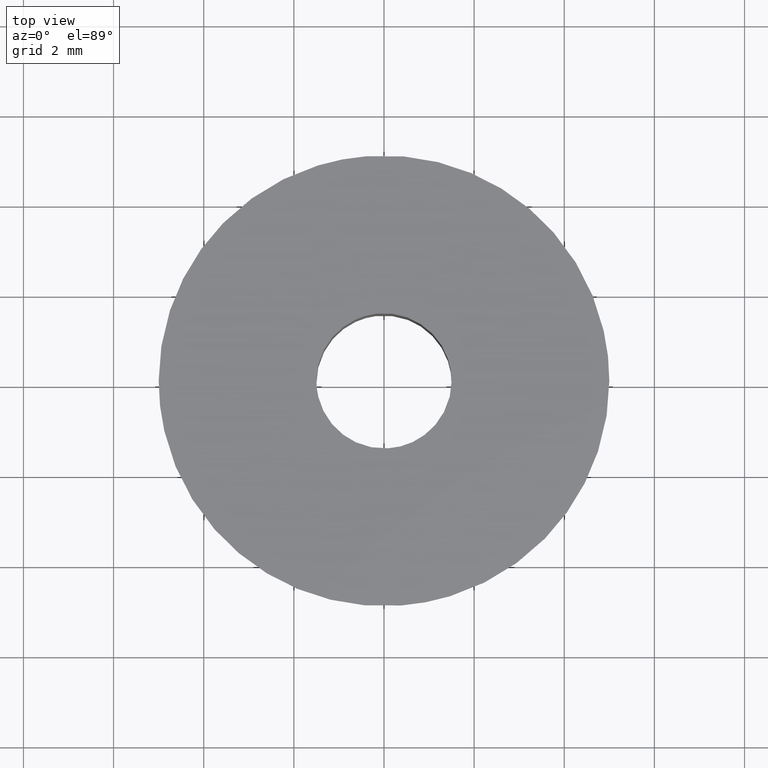
[diagram: clean part render]
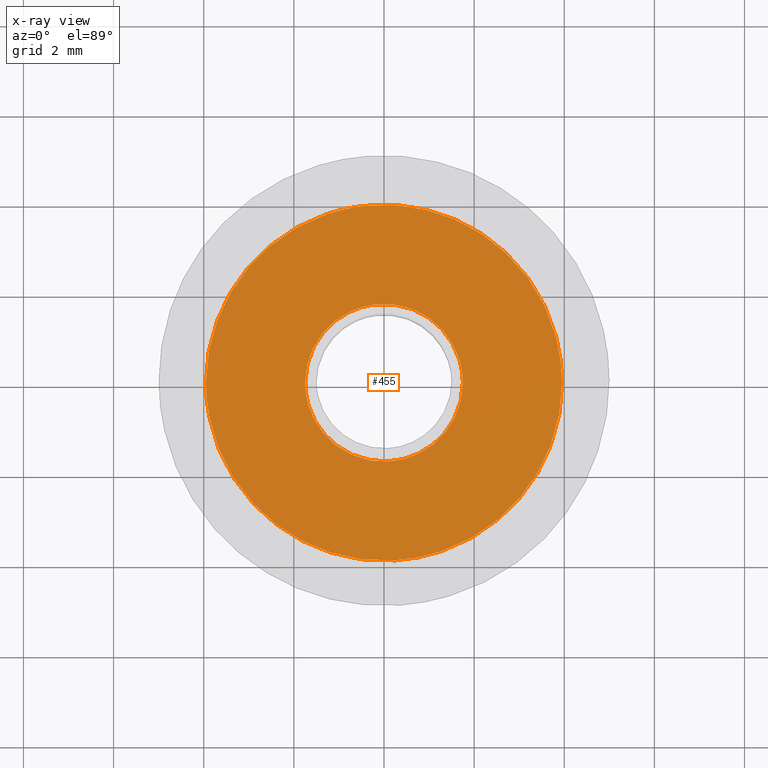
[diagram: x-ray — body ghosted, one internal face saturated and labeled with its STEP entity id]
A machine part, top view, then the same camera in x-ray: the body is ghosted and one INTERNAL B-rep face — a face not visible from any outside direction — is saturated and labeled: STEP entity #455.
In plain terms, the highlighted face is a freeform B-spline surface patch.
Its self-contained STEP definition (entity closure, byte-faithful):
#100=CARTESIAN_POINT('',(0.106834944193444,-1.746735897237812,5.500000000000000));
#101=VERTEX_POINT('',#100);
#107=CARTESIAN_POINT('',(1.750000000000000,0.0,5.500000000000000));
#108=VERTEX_POINT('',#107);
#109=CARTESIAN_POINT('',(1.750000000000000,0.0,5.500000000000000));
#110=CARTESIAN_POINT('',(1.750000000000000,-1.646235617070904,5.500000000000000));
#111=CARTESIAN_POINT('',(0.106834944193444,-1.746735897237812,5.500000000000000));
#119=(BOUNDED_CURVE()B_SPLINE_CURVE(2,(#109,#110,#111),.UNSPECIFIED.,.F.,.U.)B_SPLINE_CURVE_WITH_KNOTS((3,3),(0.500000000000000,0.739332962240497),.UNSPECIFIED.)CURVE()GEOMETRIC_REPRESENTATION_ITEM()RATIONAL_B_SPLINE_CURVE((1.0,0.719603993284889,0.976072041670049))REPRESENTATION_ITEM(''));
#120=EDGE_CURVE('',#108,#101,#119,.T.);
#122=CARTESIAN_POINT('',(-0.206556990996085,1.737767018176487,5.500000000000000));
#123=VERTEX_POINT('',#122);
#124=CARTESIAN_POINT('',(-0.206556990996086,1.737767018176487,5.499999999999999));
#125=CARTESIAN_POINT('',(-0.103640734131489,1.750000000000001,5.500000000000000));
#126=CARTESIAN_POINT('',(0.0,1.750000000000000,5.500000000000000));
#127=CARTESIAN_POINT('',(1.750000000000000,1.750000000000000,5.500000000000000));
#128=CARTESIAN_POINT('',(1.750000000000000,0.0,5.500000000000000));
#136=(BOUNDED_CURVE()B_SPLINE_CURVE(2,(#124,#125,#126,#127,#128),.UNSPECIFIED.,.F.,.U.)B_SPLINE_CURVE_WITH_KNOTS((3,2,3),(0.229562757461090,0.250000000000000,0.500000000000000),.UNSPECIFIED.)CURVE()GEOMETRIC_REPRESENTATION_ITEM()RATIONAL_B_SPLINE_CURVE((0.956027310733336,0.976056280996430,1.0,0.707106781186547,1.0))REPRESENTATION_ITEM(''));
#137=EDGE_CURVE('',#123,#108,#136,.T.);
#185=CARTESIAN_POINT('',(-1.750000000000000,0.0,5.500000000000000));
#186=VERTEX_POINT('',#185);
#187=CARTESIAN_POINT('',(-1.750000000000000,0.0,5.500000000000000));
#188=CARTESIAN_POINT('',(-1.749999999999999,1.554308050216553,5.499999999999999));
#189=CARTESIAN_POINT('',(-0.206556990996086,1.737767018176487,5.499999999999999));
#197=(BOUNDED_CURVE()B_SPLINE_CURVE(2,(#187,#188,#189),.UNSPECIFIED.,.F.,.U.)B_SPLINE_CURVE_WITH_KNOTS((3,3),(0.0,0.229562757461090),.UNSPECIFIED.)CURVE()GEOMETRIC_REPRESENTATION_ITEM()RATIONAL_B_SPLINE_CURVE((1.0,0.731050500190118,0.956027310733336))REPRESENTATION_ITEM(''));
#198=EDGE_CURVE('',#186,#123,#197,.T.);
#200=CARTESIAN_POINT('',(0.106834944193444,-1.746735897237812,5.500000000000000));
#201=CARTESIAN_POINT('',(0.053467335779996,-1.750000000000000,5.500000000000000));
#202=CARTESIAN_POINT('',(0.0,-1.750000000000000,5.500000000000000));
#203=CARTESIAN_POINT('',(-1.750000000000000,-1.750000000000000,5.500000000000000));
#204=CARTESIAN_POINT('',(-1.750000000000000,0.0,5.500000000000000));
#212=(BOUNDED_CURVE()B_SPLINE_CURVE(2,(#200,#201,#202,#203,#204),.UNSPECIFIED.,.F.,.U.)B_SPLINE_CURVE_WITH_KNOTS((3,2,3),(0.739332962240498,0.750000000000000,1.0),.UNSPECIFIED.)CURVE()GEOMETRIC_REPRESENTATION_ITEM()RATIONAL_B_SPLINE_CURVE((0.976072041670050,0.987502787901659,1.0,0.707106781186547,1.0))REPRESENTATION_ITEM(''));
#213=EDGE_CURVE('',#101,#186,#212,.T.);
#275=CARTESIAN_POINT('',(-0.466234710392845,3.922387690530428,5.500000000000000));
#276=VERTEX_POINT('',#275);
#282=CARTESIAN_POINT('',(3.950000000000000,0.0,5.500000000000000));
#283=VERTEX_POINT('',#282);
#284=CARTESIAN_POINT('',(-0.466234710392845,3.922387690530429,5.500000000000000));
#285=CARTESIAN_POINT('',(-0.233934750663320,3.950000000000000,5.500000000000000));
#286=CARTESIAN_POINT('',(0.0,3.950000000000000,5.500000000000000));
#287=CARTESIAN_POINT('',(3.950000000000001,3.950000000000001,5.500000000000000));
#288=CARTESIAN_POINT('',(3.950000000000000,0.0,5.500000000000000));
#296=(BOUNDED_CURVE()B_SPLINE_CURVE(2,(#284,#285,#286,#287,#288),.UNSPECIFIED.,.F.,.U.)B_SPLINE_CURVE_WITH_KNOTS((3,2,3),(0.229562518024458,0.250000000000000,0.500000000000000),.UNSPECIFIED.)CURVE()GEOMETRIC_REPRESENTATION_ITEM()RATIONAL_B_SPLINE_CURVE((0.956026841427000,0.976056000478966,1.0,0.707106781186547,1.0))REPRESENTATION_ITEM(''));
#297=EDGE_CURVE('',#276,#283,#296,.T.);
#299=CARTESIAN_POINT('',(0.241140880691228,-3.942632505783252,5.500000000000000));
#300=VERTEX_POINT('',#299);
#301=CARTESIAN_POINT('',(3.950000000000000,0.0,5.500000000000000));
#302=CARTESIAN_POINT('',(3.950000000000001,-3.715790570350852,5.500000000000000));
#303=CARTESIAN_POINT('',(0.241140880691228,-3.942632505783252,5.500000000000000));
#311=(BOUNDED_CURVE()B_SPLINE_CURVE(2,(#301,#302,#303),.UNSPECIFIED.,.F.,.U.)B_SPLINE_CURVE_WITH_KNOTS((3,3),(0.500000000000000,0.739333036682654),.UNSPECIFIED.)CURVE()GEOMETRIC_REPRESENTATION_ITEM()RATIONAL_B_SPLINE_CURVE((1.0,0.719603906070477,0.976072201213813))REPRESENTATION_ITEM(''));
#312=EDGE_CURVE('',#283,#300,#311,.T.);
#386=CARTESIAN_POINT('',(-3.950000000000000,0.0,5.500000000000000));
#387=VERTEX_POINT('',#386);
#388=CARTESIAN_POINT('',(0.241140880691228,-3.942632505783252,5.500000000000000));
#389=CARTESIAN_POINT('',(0.120682562173347,-3.950000000000001,5.499999999999999));
#390=CARTESIAN_POINT('',(0.0,-3.950000000000000,5.500000000000000));
#391=CARTESIAN_POINT('',(-3.950000000000001,-3.950000000000001,5.500000000000000));
#392=CARTESIAN_POINT('',(-3.950000000000000,0.0,5.500000000000000));
#400=(BOUNDED_CURVE()B_SPLINE_CURVE(2,(#388,#389,#390,#391,#392),.UNSPECIFIED.,.F.,.U.)B_SPLINE_CURVE_WITH_KNOTS((3,2,3),(0.739333036682653,0.750000000000000,1.0),.UNSPECIFIED.)CURVE()GEOMETRIC_REPRESENTATION_ITEM()RATIONAL_B_SPLINE_CURVE((0.976072201213811,0.987502875116069,1.0,0.707106781186547,1.0))REPRESENTATION_ITEM(''));
#401=EDGE_CURVE('',#300,#387,#400,.T.);
#403=CARTESIAN_POINT('',(-3.950000000000000,0.0,5.500000000000000));
#404=CARTESIAN_POINT('',(-3.950000000000000,3.508290307957782,5.500000000000000));
#405=CARTESIAN_POINT('',(-0.466234710392845,3.922387690530429,5.500000000000000));
#413=(BOUNDED_CURVE()B_SPLINE_CURVE(2,(#403,#404,#405),.UNSPECIFIED.,.F.,.U.)B_SPLINE_CURVE_WITH_KNOTS((3,3),(0.0,0.229562518024458),.UNSPECIFIED.)CURVE()GEOMETRIC_REPRESENTATION_ITEM()RATIONAL_B_SPLINE_CURVE((1.0,0.731050780707582,0.956026841427000))REPRESENTATION_ITEM(''));
#414=EDGE_CURVE('',#387,#276,#413,.T.);
#438=CARTESIAN_POINT('',(4.344605058847815,-4.344508993518319,5.500000000000000));
#439=CARTESIAN_POINT('',(-4.344605200110824,-4.344508993518319,5.500000000000000));
#440=CARTESIAN_POINT('',(4.344605058847815,4.344533149492707,5.500000000000000));
#441=CARTESIAN_POINT('',(-4.344605200110824,4.344533149492707,5.500000000000000));
#442=B_SPLINE_SURFACE_WITH_KNOTS('',1,1,((#438,#440),(#439,#441)),.UNSPECIFIED.,.F.,.F.,.U.,(2,2),(2,2),(0.0,8.689210258958639),(0.0,8.689042143011026),.UNSPECIFIED.);
#443=ORIENTED_EDGE('',*,*,#401,.F.);
#444=ORIENTED_EDGE('',*,*,#312,.F.);
#445=ORIENTED_EDGE('',*,*,#297,.F.);
#446=ORIENTED_EDGE('',*,*,#414,.F.);
#447=EDGE_LOOP('',(#443,#444,#445,#446));
#448=FACE_OUTER_BOUND('',#447,.T.);
#449=ORIENTED_EDGE('',*,*,#120,.T.);
#450=ORIENTED_EDGE('',*,*,#213,.T.);
#451=ORIENTED_EDGE('',*,*,#198,.T.);
#452=ORIENTED_EDGE('',*,*,#137,.T.);
#453=EDGE_LOOP('',(#449,#450,#451,#452));
#454=FACE_BOUND('',#453,.T.);
#455=ADVANCED_FACE('',(#448,#454),#442,.F.);